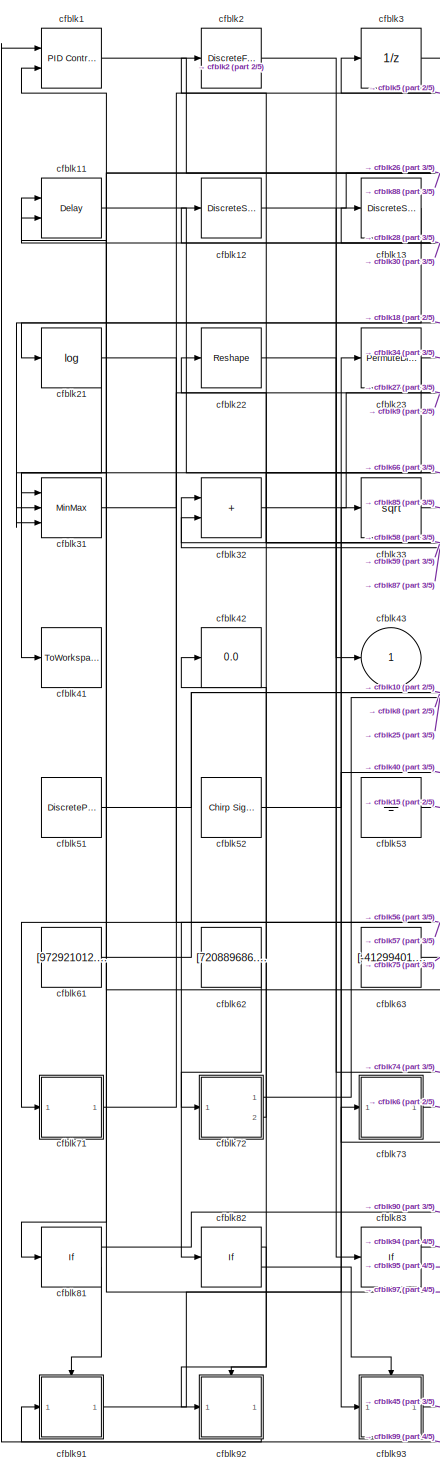
[diagram: root canvas - part 1/5, left side, full height]
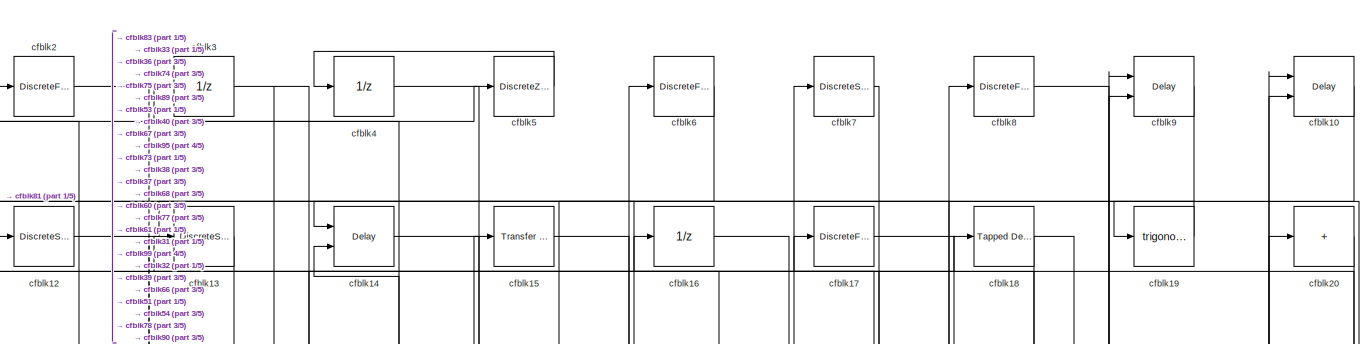
[diagram: root canvas - part 2/5, full width, top band]
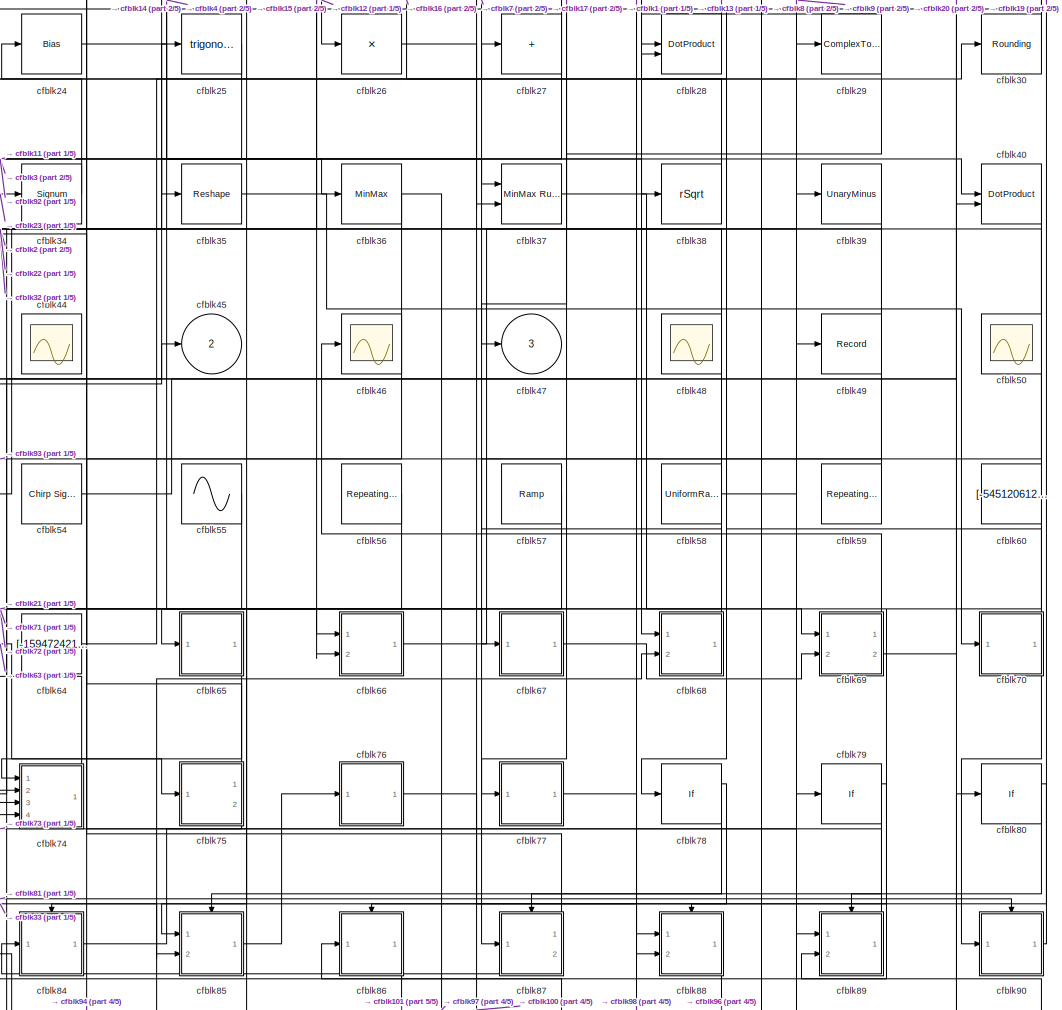
[diagram: root canvas - part 3/5, central region]
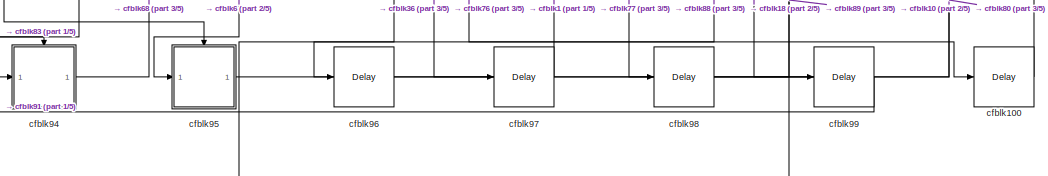
[diagram: root canvas - part 4/5, bottom center region]
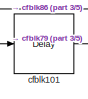
[diagram: root canvas - part 5/5, bottom left region]
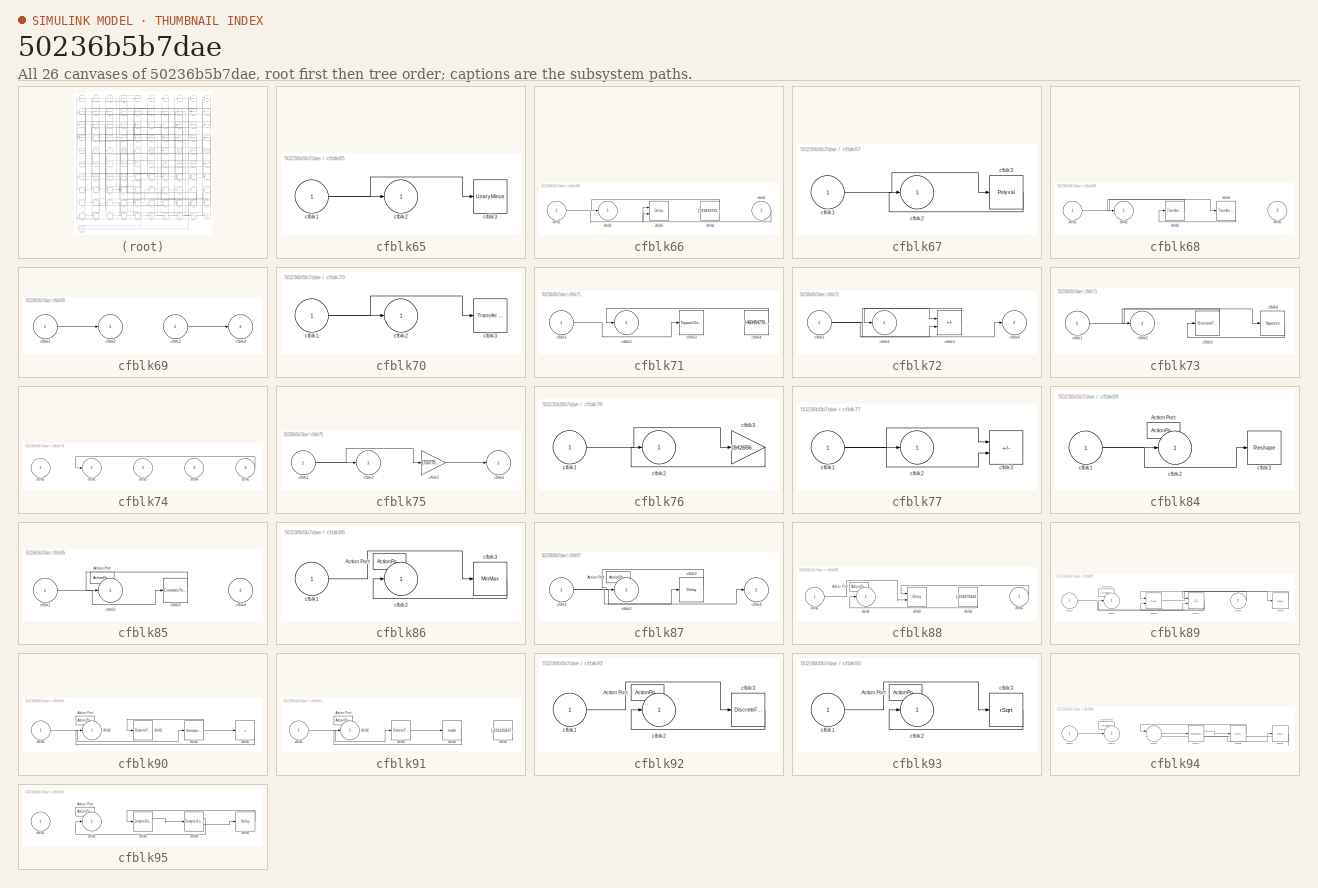
[diagram: thumbnail index - all 26 canvases of the model, root first then tree order]
MODEL slx_50236b5b7dae
KIND model
CONFIG AbsTol = auto
CONFIG EnableMultiTasking = off
CONFIG FixedStep = auto
CONFIG MaxStep = auto
CONFIG MinStep = auto
CONFIG RelTol = 1e-3
CONFIG SampleTimeConstraint = Unconstrained
CONFIG SolverName = VariableStepAuto
CONFIG StartTime = 0.0
CONFIG StopTime = 10.0
BLOCK [Reference] cfblk1  REF=slpidlib/PID Controller (2DOF)
  Ports = [2, 1]
  SourceBlock = slpidlib/PID Controller (2DOF)
  SourceProductBaseCode = SL
  SourceType = PID 2dof
BLOCK [Delay] cfblk10
  InputPortMap = u0,e6
  Ports = [2, 1]
  SampleTime = 1
  ShowEnablePort = on
BLOCK [Delay] cfblk100
  InputPortMap = u0
  Ports = [1, 1]
  SampleTime = 1
BLOCK [Delay] cfblk101
  InputPortMap = u0
  Ports = [1, 1]
  SampleTime = 1
BLOCK [Delay] cfblk11
  DelayLengthSource = Input port
  InputPortMap = u0,p1
  Ports = [2, 1]
  SampleTime = 1
BLOCK [DiscreteStateSpace] cfblk12
BLOCK [DiscreteStateSpace] cfblk13
BLOCK [Delay] cfblk14
  InputPortMap = u0,e6
  Ports = [2, 1]
  SampleTime = 1
  ShowEnablePort = on
BLOCK [Reference] cfblk15  REF=simulink/Discrete/Transfer Fcn
First Order
  Ports = [1, 1]
  SourceBlock = simulink/Discrete/Transfer Fcn\nFirst Order
  SourceProductBaseCode = SL
  SourceType = First Order Transfer Fcn
BLOCK [UnitDelay] cfblk16
  HasFrameUpgradeWarning = on
BLOCK [DiscreteFir] cfblk17
  InputPortMap = u0
  OutputPortMap = o0
  Ports = [1, 1]
  SampleTime = 1
BLOCK [Reference] cfblk18  REF=simulink/Discrete/Tapped Delay
  Ports = [1, 1]
  SourceBlock = simulink/Discrete/Tapped Delay
  SourceProductBaseCode = SL
  SourceType = Tapped Delay Line
BLOCK [Trigonometry] cfblk19
  Ports = [1, 1]
BLOCK [DiscreteFir] cfblk2
  InputPortMap = u0
  OutputPortMap = o0
  Ports = [1, 1]
  SampleTime = 1
BLOCK [Sum] cfblk20
  IconShape = rectangular
  Inputs = +
  Ports = [1, 1]
BLOCK [Math] cfblk21
  Operator = log
  Ports = [1, 1]
BLOCK [Reshape] cfblk22
  Ports = [1, 1]
BLOCK [PermuteDimensions] cfblk23
BLOCK [Bias] cfblk24
  Bias = [-901351750.501073]
  SaturateOnIntegerOverflow = off
BLOCK [Trigonometry] cfblk25
  Ports = [1, 1]
BLOCK [Product] cfblk26
  Inputs = *
  Ports = [1, 1]
BLOCK [Sum] cfblk27
  IconShape = rectangular
  Inputs = +
  Ports = [1, 1]
BLOCK [DotProduct] cfblk28
  OutDataTypeStr = Inherit: Inherit via internal rule
BLOCK [ComplexToRealImag] cfblk29
  Ports = [1, 2]
BLOCK [UnitDelay] cfblk3
  HasFrameUpgradeWarning = on
BLOCK [Rounding] cfblk30
BLOCK [MinMax] cfblk31
  Inputs = 3
  Ports = [3, 1]
BLOCK [Sum] cfblk32
  IconShape = rectangular
  Ports = [2, 1]
BLOCK [Sqrt] cfblk33
BLOCK [Signum] cfblk34
BLOCK [Reshape] cfblk35
  Ports = [1, 1]
BLOCK [MinMax] cfblk36
  Function = max
  Ports = [1, 1]
BLOCK [Reference] cfblk37  REF=simulink/Math
Operations/MinMax
Running
Resettable
  Ports = [2, 1]
  SourceBlock = simulink/Math\nOperations/MinMax\nRunning\nResettable
  SourceProductBaseCode = SL
  SourceType = MinMax Running Resettable
BLOCK [Sqrt] cfblk38
  AlgorithmType = Newton-Raphson
  Operator = rSqrt
BLOCK [UnaryMinus] cfblk39
BLOCK [UnitDelay] cfblk4
  HasFrameUpgradeWarning = on
BLOCK [DotProduct] cfblk40
  OutDataTypeStr = Inherit: Inherit via internal rule
BLOCK [ToWorkspace] cfblk41
  FixptAsFi = on
  MaxDataPoints = inf
  Ports = [1]
  SampleTime = -1
  SaveFormat = Timeseries
  VariableName = iqaqulc
BLOCK [Display] cfblk42
  Decimation = 1
  Ports = [1]
BLOCK [Outport] cfblk43
BLOCK [Scope] cfblk44
  Floating = on
  NumInputPorts = 1
  Ports = []
  ScopeSpecificationString = Simulink.scopes.TimeScopeBlockCfg
BLOCK [Outport] cfblk45
  Port = 2
BLOCK [Scope] cfblk46
  Floating = off
  NumInputPorts = 1
  Ports = [1]
  ScopeSpecificationString = Simulink.scopes.TimeScopeBlockCfg
BLOCK [Outport] cfblk47
  Port = 3
BLOCK [Scope] cfblk48
  Floating = on
  NumInputPorts = 1
  Ports = []
  ScopeSpecificationString = Simulink.scopes.TimeScopeBlockCfg
BLOCK [Record] cfblk49
  FileSettingsInternal = {"entries":[{"content":{"excelSettings":{"content":{},"type":"Streamout.ExcelSettings"}},"type":"Streamout.FileSettingStorage","uuid":"f2e1b8d2-99cf-47f0-99c0-b13258d1778a"}],"packageUris":["http://schema.mathworks.com/mf0/streamout_blocks/R2020a"],"version":"1.0"}
  Ports = [1]
  SignalsInternal = {"entries":[{"content":{"signals":[{"content":{"blockPath":["sampleModel98/cfblk49"],"channel":[],"dimensions":[1],"domain":"sampleModel98/cfblk49","lineColor":"#4dbeee","plots":[1],"port":1,"sid":[""],"signalID":26449,"signalName":"cfblk84"},"type":"RecordBlkView.Signal","uuid":"a8dcc7f6-b363-4ce4-accc-3e93054832d9"}]},"type":"RecordBlkView.InputSignals","uuid":"aaaac346-ddfa-4c10-a6ea-2fd00368ec...<+96ch>
  VisualizationBindings = {"sparklinesplugin":{"info":[{"bindingParametersList":[],"subplotID":1}]}}
BLOCK [DiscreteZeroPole] cfblk5
  Gain = 1
  Poles = [0 0.5]
BLOCK [Scope] cfblk50
  Floating = on
  NumInputPorts = 1
  Ports = []
  ScopeSpecificationString = Simulink.scopes.TimeScopeBlockCfg
BLOCK [DiscretePulseGenerator] cfblk51
  Amplitude = [-833125303.274875]
  Period = [62482245.083306]
  PhaseDelay = [3.000000]
  Ports = [0, 1]
  PulseType = Time based
  PulseWidth = 5
BLOCK [Reference] cfblk52  REF=simulink/Sources/Chirp Signal
  Ports = [0, 1]
  SourceBlock = simulink/Sources/Chirp Signal
  SourceProductBaseCode = SL
  SourceType = chirp
BLOCK [Ground] cfblk53
BLOCK [Reference] cfblk54  REF=simulink/Sources/Chirp Signal
  Ports = [0, 1]
  SourceBlock = simulink/Sources/Chirp Signal
  SourceProductBaseCode = SL
  SourceType = chirp
BLOCK [Sin] cfblk55
  Amplitude = [-344619677.755525]
  Bias = [504210884.884345]
  Ports = [0, 1]
  SampleTime = 0
BLOCK [Reference] cfblk56  REF=simulink/Sources/Repeating
Sequence
Interpolated
  Ports = [0, 1]
  SourceBlock = simulink/Sources/Repeating\nSequence\nInterpolated
  SourceProductBaseCode = SL
  SourceType = Repeating Sequence Interpolated
BLOCK [Reference] cfblk57  REF=simulink/Sources/Ramp
  Ports = [0, 1]
  SourceBlock = simulink/Sources/Ramp
  SourceProductBaseCode = SL
  SourceType = Ramp
BLOCK [UniformRandomNumber] cfblk58
  Maximum = [1513930273.771641]
  Minimum = [-3049811920.776981]
  SampleTime = 0.1
  Seed = [63448783.000000]
BLOCK [Reference] cfblk59  REF=simulink/Sources/Repeating
Sequence
  Ports = [0, 1]
  SourceBlock = simulink/Sources/Repeating\nSequence
  SourceProductBaseCode = SL
  SourceType = Repeating table
BLOCK [DiscreteFilter] cfblk6
  InputPortMap = u0
  Ports = [1, 1]
  SampleTime = 1
BLOCK [Constant] cfblk60
  SampleTime = 1
  Value = [-545120612.766279]
BLOCK [Constant] cfblk61
  SampleTime = 1
  Value = [972921012.275413]
BLOCK [Constant] cfblk62
  SampleTime = 1
  Value = [720889686.966521]
BLOCK [Constant] cfblk63
  SampleTime = 1
  Value = [-41299401.357326]
BLOCK [Constant] cfblk64
  SampleTime = 1
  Value = [-159472421.639859]
BLOCK [SubSystem] cfblk65
  Ports = [1, 1]
  RequestExecContextInheritance = off
BLOCK [Inport] cfblk65/cfblk1
BLOCK [Outport] cfblk65/cfblk2
BLOCK [UnaryMinus] cfblk65/cfblk3
BLOCK [SubSystem] cfblk66
  Ports = [2, 1]
  RequestExecContextInheritance = off
BLOCK [Inport] cfblk66/cfblk1
BLOCK [Outport] cfblk66/cfblk2
BLOCK [Delay] cfblk66/cfblk3
  DelayLengthSource = Input port
  InputPortMap = u0,p1
  Ports = [2, 1]
  SampleTime = 1
BLOCK [Constant] cfblk66/cfblk4
  SampleTime = 1
  Value = [743833791.353343]
BLOCK [Inport] cfblk66/cfblk5
  Port = 2
BLOCK [SubSystem] cfblk67
  Ports = [1, 1]
  RequestExecContextInheritance = off
BLOCK [Inport] cfblk67/cfblk1
BLOCK [Outport] cfblk67/cfblk2
BLOCK [Polyval] cfblk67/cfblk3
  Coefs = [ +2.081618890e-019, -1.441693666e-014, +4.719686976e-010, -8.536869453e-006, +1.621573104e-001, -8.087801117e+001 ]
BLOCK [SubSystem] cfblk68
  Ports = [2, 1]
  RequestExecContextInheritance = off
BLOCK [Inport] cfblk68/cfblk1
BLOCK [Outport] cfblk68/cfblk2
BLOCK [Reference] cfblk68/cfblk3  REF=simulink/Discrete/Transfer Fcn
Lead or Lag
  Ports = [1, 1]
  SourceBlock = simulink/Discrete/Transfer Fcn\nLead or Lag
  SourceProductBaseCode = SL
  SourceType = Lead or Lag Compensator
BLOCK [Reference] cfblk68/cfblk4  REF=simulink/Discrete/Transfer Fcn
First Order
  Ports = [1, 1]
  SourceBlock = simulink/Discrete/Transfer Fcn\nFirst Order
  SourceProductBaseCode = SL
  SourceType = First Order Transfer Fcn
BLOCK [Inport] cfblk68/cfblk5
  Port = 2
BLOCK [SubSystem] cfblk69
  Ports = [2, 2]
  RequestExecContextInheritance = off
BLOCK [Inport] cfblk69/cfblk1
BLOCK [Outport] cfblk69/cfblk2
BLOCK [Inport] cfblk69/cfblk3
  Port = 2
BLOCK [Outport] cfblk69/cfblk4
  Port = 2
BLOCK [DiscreteStateSpace] cfblk7
BLOCK [SubSystem] cfblk70
  Ports = [1, 1]
  RequestExecContextInheritance = off
BLOCK [Inport] cfblk70/cfblk1
BLOCK [Outport] cfblk70/cfblk2
BLOCK [Reference] cfblk70/cfblk3  REF=simulink/Discrete/Transfer Fcn
Real Zero
  Ports = [1, 1]
  SourceBlock = simulink/Discrete/Transfer Fcn\nReal Zero
  SourceProductBaseCode = SL
  SourceType = Transfer Fcn Real Zero
BLOCK [SubSystem] cfblk71
  Ports = [1, 1]
  RequestExecContextInheritance = off
BLOCK [Inport] cfblk71/cfblk1
BLOCK [Outport] cfblk71/cfblk2
BLOCK [Reference] cfblk71/cfblk3  REF=simulink/Discrete/Tapped Delay
  Ports = [1, 1]
  SourceBlock = simulink/Discrete/Tapped Delay
  SourceProductBaseCode = SL
  SourceType = Tapped Delay Line
BLOCK [Constant] cfblk71/cfblk4
  SampleTime = 1
  Value = [-493454779.766346]
BLOCK [SubSystem] cfblk72
  Ports = [1, 2]
  RequestExecContextInheritance = off
BLOCK [Inport] cfblk72/cfblk1
BLOCK [Outport] cfblk72/cfblk2
BLOCK [Sum] cfblk72/cfblk3
  IconShape = rectangular
  Inputs = -+
  Ports = [2, 1]
BLOCK [Outport] cfblk72/cfblk4
  Port = 2
BLOCK [SubSystem] cfblk73
  Ports = [1, 1]
  RequestExecContextInheritance = off
BLOCK [Inport] cfblk73/cfblk1
BLOCK [Outport] cfblk73/cfblk2
BLOCK [DiscreteFir] cfblk73/cfblk3
  InputPortMap = u0
  OutputPortMap = o0
  Ports = [1, 1]
  SampleTime = 1
BLOCK [Squeeze] cfblk73/cfblk4
BLOCK [SubSystem] cfblk74
  Ports = [4, 1]
  RequestExecContextInheritance = off
BLOCK [Inport] cfblk74/cfblk1
BLOCK [Outport] cfblk74/cfblk2
BLOCK [Inport] cfblk74/cfblk3
  Port = 2
BLOCK [Inport] cfblk74/cfblk4
  Port = 3
BLOCK [Inport] cfblk74/cfblk5
  Port = 4
BLOCK [SubSystem] cfblk75
  Ports = [1, 2]
  RequestExecContextInheritance = off
BLOCK [Inport] cfblk75/cfblk1
BLOCK [Outport] cfblk75/cfblk2
BLOCK [Gain] cfblk75/cfblk3
  Gain = [733775026.477658]
BLOCK [Outport] cfblk75/cfblk4
  Port = 2
BLOCK [SubSystem] cfblk76
  Ports = [1, 1]
  RequestExecContextInheritance = off
BLOCK [Inport] cfblk76/cfblk1
BLOCK [Outport] cfblk76/cfblk2
BLOCK [Gain] cfblk76/cfblk3
  Gain = [842656306.747362]
BLOCK [SubSystem] cfblk77
  Ports = [1, 1]
  RequestExecContextInheritance = off
BLOCK [Inport] cfblk77/cfblk1
BLOCK [Outport] cfblk77/cfblk2
BLOCK [Sum] cfblk77/cfblk3
  IconShape = rectangular
  Inputs = +-
  Ports = [2, 1]
BLOCK [If] cfblk78
  IfExpression = u1 >= 0
  Ports = [1, 2]
  SampleTime = 1
BLOCK [If] cfblk79
  IfExpression = u1 >= 0
  Ports = [1, 2]
  SampleTime = 1
BLOCK [DiscreteFilter] cfblk8
  InputPortMap = u0
  Ports = [1, 1]
  SampleTime = 1
BLOCK [If] cfblk80
  IfExpression = u1 >= 0
  Ports = [1, 2]
  SampleTime = 1
BLOCK [If] cfblk81
  IfExpression = u1 >= 0
  Ports = [1, 2]
  SampleTime = 1
BLOCK [If] cfblk82
  IfExpression = u1 >= 0
  Ports = [1, 2]
  SampleTime = 1
BLOCK [If] cfblk83
  IfExpression = u1 >= 0
  Ports = [1, 2]
  SampleTime = 1
BLOCK [SubSystem] cfblk84
  Ports = [1, 1, 0, 0, 0, 0, 0, 1]
  RequestExecContextInheritance = off
  TreatAsAtomicUnit = on
BLOCK [ActionPort] cfblk84/Action Port
  ActionPortLabel = if(u1 >= 0)
BLOCK [Inport] cfblk84/cfblk1
BLOCK [Outport] cfblk84/cfblk2
BLOCK [Reshape] cfblk84/cfblk3
  Ports = [1, 1]
BLOCK [SubSystem] cfblk85
  Ports = [2, 1, 0, 0, 0, 0, 0, 1]
  RequestExecContextInheritance = off
  TreatAsAtomicUnit = on
BLOCK [ActionPort] cfblk85/Action Port
  ActionPortLabel = else
BLOCK [Inport] cfblk85/cfblk1
BLOCK [Outport] cfblk85/cfblk2
BLOCK [ComplexToRealImag] cfblk85/cfblk3
  Ports = [1, 2]
BLOCK [Inport] cfblk85/cfblk4
  Port = 2
BLOCK [SubSystem] cfblk86
  Ports = [1, 1, 0, 0, 0, 0, 0, 1]
  RequestExecContextInheritance = off
  TreatAsAtomicUnit = on
BLOCK [ActionPort] cfblk86/Action Port
  ActionPortLabel = if(u1 >= 0)
BLOCK [Inport] cfblk86/cfblk1
BLOCK [Outport] cfblk86/cfblk2
BLOCK [MinMax] cfblk86/cfblk3
  Ports = [1, 1]
BLOCK [SubSystem] cfblk87
  Ports = [1, 2, 0, 0, 0, 0, 0, 1]
  RequestExecContextInheritance = off
  TreatAsAtomicUnit = on
BLOCK [ActionPort] cfblk87/Action Port
  ActionPortLabel = else
BLOCK [Inport] cfblk87/cfblk1
BLOCK [Outport] cfblk87/cfblk2
BLOCK [Delay] cfblk87/cfblk3
  InputPortMap = u0
  Ports = [1, 1]
BLOCK [Outport] cfblk87/cfblk4
  Port = 2
BLOCK [SubSystem] cfblk88
  Ports = [2, 1, 0, 0, 0, 0, 0, 1]
  RequestExecContextInheritance = off
  TreatAsAtomicUnit = on
BLOCK [ActionPort] cfblk88/Action Port
  ActionPortLabel = if(u1 >= 0)
BLOCK [Inport] cfblk88/cfblk1
BLOCK [Outport] cfblk88/cfblk2
BLOCK [Delay] cfblk88/cfblk3
  DelayLengthSource = Input port
  InputPortMap = u0,p1
  Ports = [2, 1]
BLOCK [Constant] cfblk88/cfblk4
  SampleTime = 1
  Value = [-234475642.590954]
BLOCK [Inport] cfblk88/cfblk5
  Port = 2
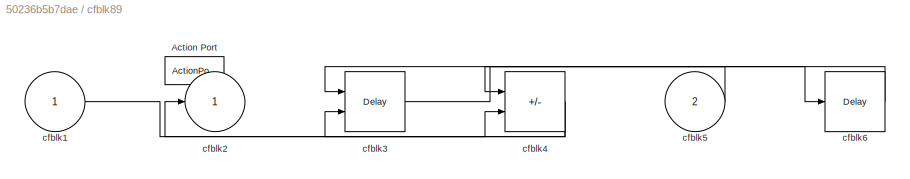
BLOCK [SubSystem] cfblk89
  Ports = [2, 1, 0, 0, 0, 0, 0, 1]
  RequestExecContextInheritance = off
  TreatAsAtomicUnit = on
BLOCK [ActionPort] cfblk89/Action Port
  ActionPortLabel = else
BLOCK [Inport] cfblk89/cfblk1
BLOCK [Outport] cfblk89/cfblk2
BLOCK [Delay] cfblk89/cfblk3
  InputPortMap = u0,e6
  Ports = [2, 1]
  ShowEnablePort = on
BLOCK [Sum] cfblk89/cfblk4
  IconShape = rectangular
  Inputs = --
  Ports = [2, 1]
BLOCK [Inport] cfblk89/cfblk5
  Port = 2
BLOCK [Delay] cfblk89/cfblk6
  InputPortMap = u0
  Ports = [1, 1]
BLOCK [Delay] cfblk9
  InputPortMap = u0,e6
  Ports = [2, 1]
  SampleTime = 1
  ShowEnablePort = on
BLOCK [SubSystem] cfblk90
  Ports = [1, 1, 0, 0, 0, 0, 0, 1]
  RequestExecContextInheritance = off
  TreatAsAtomicUnit = on
BLOCK [ActionPort] cfblk90/Action Port
  ActionPortLabel = if(u1 >= 0)
BLOCK [Inport] cfblk90/cfblk1
BLOCK [Outport] cfblk90/cfblk2
BLOCK [DiscreteFir] cfblk90/cfblk3
  InputPortMap = u0
  OutputPortMap = o0
  Ports = [1, 1]
BLOCK [Math] cfblk90/cfblk4
  Operator = transpose
  Ports = [1, 1]
BLOCK [Sum] cfblk90/cfblk5
  IconShape = rectangular
  Inputs = +
  Ports = [1, 1]
BLOCK [SubSystem] cfblk91
  Ports = [1, 1, 0, 0, 0, 0, 0, 1]
  RequestExecContextInheritance = off
  TreatAsAtomicUnit = on
BLOCK [ActionPort] cfblk91/Action Port
  ActionPortLabel = else
BLOCK [Inport] cfblk91/cfblk1
BLOCK [Outport] cfblk91/cfblk2
BLOCK [DiscreteFilter] cfblk91/cfblk3
  InputPortMap = u0
  Ports = [1, 1]
BLOCK [Math] cfblk91/cfblk4
  Ports = [1, 1]
BLOCK [Constant] cfblk91/cfblk5
  SampleTime = 1
  Value = [-223125837.361572]
BLOCK [SubSystem] cfblk92
  Ports = [1, 1, 0, 0, 0, 0, 0, 1]
  RequestExecContextInheritance = off
  TreatAsAtomicUnit = on
BLOCK [ActionPort] cfblk92/Action Port
  ActionPortLabel = if(u1 >= 0)
BLOCK [Inport] cfblk92/cfblk1
BLOCK [Outport] cfblk92/cfblk2
BLOCK [DiscreteFir] cfblk92/cfblk3
  InputPortMap = u0
  OutputPortMap = o0
  Ports = [1, 1]
BLOCK [SubSystem] cfblk93
  Ports = [1, 1, 0, 0, 0, 0, 0, 1]
  RequestExecContextInheritance = off
  TreatAsAtomicUnit = on
BLOCK [ActionPort] cfblk93/Action Port
  ActionPortLabel = else
BLOCK [Inport] cfblk93/cfblk1
BLOCK [Outport] cfblk93/cfblk2
BLOCK [Sqrt] cfblk93/cfblk3
  AlgorithmType = Newton-Raphson
  Operator = rSqrt
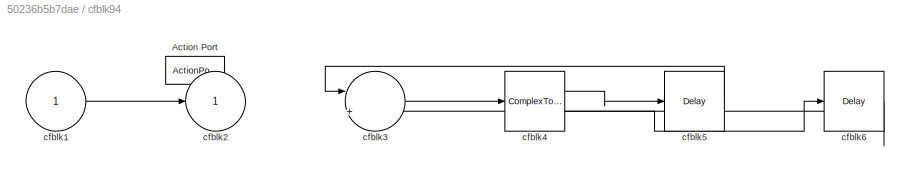
BLOCK [SubSystem] cfblk94
  Ports = [1, 1, 0, 0, 0, 0, 0, 1]
  RequestExecContextInheritance = off
  TreatAsAtomicUnit = on
BLOCK [ActionPort] cfblk94/Action Port
  ActionPortLabel = if(u1 >= 0)
BLOCK [Inport] cfblk94/cfblk1
BLOCK [Outport] cfblk94/cfblk2
BLOCK [Sum] cfblk94/cfblk3
  Inputs = |++
  Ports = [2, 1]
BLOCK [ComplexToMagnitudeAngle] cfblk94/cfblk4
  Ports = [1, 2]
BLOCK [Delay] cfblk94/cfblk5
  InputPortMap = u0
  Ports = [1, 1]
BLOCK [Delay] cfblk94/cfblk6
  InputPortMap = u0
  Ports = [1, 1]
BLOCK [SubSystem] cfblk95
  Ports = [1, 1, 0, 0, 0, 0, 0, 1]
  RequestExecContextInheritance = off
  TreatAsAtomicUnit = on
BLOCK [ActionPort] cfblk95/Action Port
  ActionPortLabel = else
BLOCK [Inport] cfblk95/cfblk1
BLOCK [Outport] cfblk95/cfblk2
BLOCK [ComplexToMagnitudeAngle] cfblk95/cfblk3
  Ports = [1, 2]
BLOCK [ComplexToMagnitudeAngle] cfblk95/cfblk4
  Ports = [1, 2]
BLOCK [Delay] cfblk95/cfblk5
  InputPortMap = u0
  Ports = [1, 1]
BLOCK [Delay] cfblk96
  InputPortMap = u0
  Ports = [1, 1]
  SampleTime = 1
BLOCK [Delay] cfblk97
  InputPortMap = u0
  Ports = [1, 1]
  SampleTime = 1
BLOCK [Delay] cfblk98
  InputPortMap = u0
  Ports = [1, 1]
  SampleTime = 1
BLOCK [Delay] cfblk99
  InputPortMap = u0
  Ports = [1, 1]
  SampleTime = 1
LINE cfblk100:1 -> cfblk89:2
LINE cfblk101:1 -> cfblk79:1
LINE cfblk10:1 -> cfblk31:1
LINE cfblk11:1 -> cfblk66:1
NET cfblk12:1 -> cfblk26:1, cfblk74:4
LINE cfblk13:1 -> cfblk21:1
LINE cfblk14:1 -> cfblk40:1
LINE cfblk15:1 -> cfblk38:1
LINE cfblk16:1 -> cfblk37:2
LINE cfblk17:1 -> cfblk68:1
NET cfblk18:1 -> cfblk31:3, cfblk99:1
LINE cfblk19:1 -> cfblk14:1
LINE cfblk1:1 -> cfblk88:1
LINE cfblk20:1 -> cfblk78:1
NET cfblk21:1 -> cfblk41:1, cfblk66:2
LINE cfblk22:1 -> cfblk43:1
NET cfblk23:1 -> cfblk31:2, cfblk34:1
LINE cfblk24:1 -> cfblk37:1
LINE cfblk25:1 -> cfblk35:1
LINE cfblk26:1 -> cfblk88:2
NET cfblk27:1 -> cfblk11:2, cfblk92:1
LINE cfblk28:1 -> cfblk13:1
LINE cfblk29:1 -> cfblk28:1
LINE cfblk29:2 -> cfblk47:1
LINE cfblk2:1 -> cfblk83:1
LINE cfblk30:1 -> cfblk12:1
LINE cfblk31:1 -> cfblk5:1
LINE cfblk32:1 -> cfblk9:2
NET cfblk33:1 -> cfblk18:1, cfblk85:2
LINE cfblk34:1 -> cfblk24:1
LINE cfblk35:1 -> cfblk70:1
NET cfblk36:1 -> cfblk94:1, cfblk97:1
LINE cfblk37:1 -> cfblk69:1
LINE cfblk38:1 -> cfblk16:1
LINE cfblk39:1 -> cfblk87:1
NET cfblk3:1 -> cfblk36:1, cfblk74:2
LINE cfblk40:1 -> cfblk93:1
LINE cfblk4:1 -> cfblk67:1
LINE cfblk51:1 -> cfblk10:1
LINE cfblk52:1 -> cfblk23:1
LINE cfblk53:1 -> cfblk15:1
LINE cfblk54:1 -> cfblk20:1
LINE cfblk55:1 -> cfblk65:1
LINE cfblk56:1 -> cfblk72:1
LINE cfblk57:1 -> cfblk71:1
NET cfblk58:1 -> cfblk22:1, cfblk29:1, cfblk74:3
LINE cfblk59:1 -> cfblk32:2
LINE cfblk5:1 -> cfblk4:1
NET cfblk60:1 -> cfblk17:1, cfblk2:1, cfblk85:1, cfblk86:1
LINE cfblk61:1 -> cfblk8:1
LINE cfblk62:1 -> cfblk82:1
LINE cfblk63:1 -> cfblk75:1
LINE cfblk64:1 -> cfblk30:1
NET cfblk65/cfblk1:1 -> cfblk65/cfblk2:1, cfblk65/cfblk3:1
LINE cfblk65:1 -> cfblk74:1
LINE cfblk66/cfblk1:1 -> cfblk66/cfblk3:2
LINE cfblk66/cfblk4:1 -> cfblk66/cfblk2:1
LINE cfblk66/cfblk5:1 -> cfblk66/cfblk3:1
LINE cfblk66:1 -> cfblk9:1
LINE cfblk67/cfblk1:1 -> cfblk67/cfblk3:1
LINE cfblk67/cfblk3:1 -> cfblk67/cfblk2:1
LINE cfblk67:1 -> cfblk69:2
LINE cfblk68/cfblk1:1 -> cfblk68/cfblk4:1
LINE cfblk68/cfblk3:1 -> cfblk68/cfblk2:1
LINE cfblk68/cfblk4:1 -> cfblk68/cfblk3:1
LINE cfblk68:1 -> cfblk7:1
LINE cfblk69/cfblk1:1 -> cfblk69/cfblk2:1
LINE cfblk69/cfblk3:1 -> cfblk69/cfblk4:1
LINE cfblk69:1 -> cfblk46:1
LINE cfblk69:2 -> cfblk40:2
LINE cfblk6:1 -> cfblk95:1
NET cfblk70/cfblk1:1 -> cfblk70/cfblk2:1, cfblk70/cfblk3:1
NET cfblk70:1 -> cfblk28:2, cfblk90:1
LINE cfblk71/cfblk1:1 -> cfblk71/cfblk3:1
LINE cfblk71/cfblk4:1 -> cfblk71/cfblk2:1
LINE cfblk71:1 -> cfblk27:1
NET cfblk72/cfblk1:1 -> cfblk72/cfblk3:1, cfblk72/cfblk3:2, cfblk72/cfblk4:1
LINE cfblk72/cfblk3:1 -> cfblk72/cfblk2:1
LINE cfblk72:1 -> cfblk25:1
LINE cfblk72:2 -> cfblk42:1
LINE cfblk73/cfblk1:1 -> cfblk73/cfblk4:1
LINE cfblk73/cfblk3:1 -> cfblk73/cfblk2:1
LINE cfblk73/cfblk4:1 -> cfblk73/cfblk3:1
LINE cfblk73:1 -> cfblk6:1
LINE cfblk74/cfblk5:1 -> cfblk74/cfblk2:1
LINE cfblk74:1 -> cfblk11:1
NET cfblk75/cfblk1:1 -> cfblk75/cfblk2:1, cfblk75/cfblk3:1
LINE cfblk75/cfblk3:1 -> cfblk75/cfblk4:1
LINE cfblk75:1 -> cfblk14:2
LINE cfblk75:2 -> cfblk73:1
LINE cfblk76/cfblk1:1 -> cfblk76/cfblk3:1
LINE cfblk76/cfblk3:1 -> cfblk76/cfblk2:1
LINE cfblk76:1 -> cfblk100:1
NET cfblk77/cfblk1:1 -> cfblk77/cfblk2:1, cfblk77/cfblk3:1, cfblk77/cfblk3:2
LINE cfblk77:1 -> cfblk98:1
LINE cfblk78:1 -> cfblk84:ifaction
LINE cfblk78:2 -> cfblk85:ifaction
LINE cfblk79:1 -> cfblk86:ifaction
LINE cfblk79:2 -> cfblk87:ifaction
LINE cfblk7:1 -> cfblk77:1
LINE cfblk80:1 -> cfblk88:ifaction
LINE cfblk80:2 -> cfblk89:ifaction
LINE cfblk81:1 -> cfblk90:ifaction
LINE cfblk81:2 -> cfblk91:ifaction
LINE cfblk82:1 -> cfblk92:ifaction
LINE cfblk82:2 -> cfblk93:ifaction
LINE cfblk83:1 -> cfblk94:ifaction
LINE cfblk83:2 -> cfblk95:ifaction
NET cfblk84/cfblk1:1 -> cfblk84/cfblk2:1, cfblk84/cfblk3:1
LINE cfblk84:1 -> cfblk49:1
LINE cfblk85/cfblk1:1 -> cfblk85/cfblk3:1
LINE cfblk85/cfblk3:1 -> cfblk85/cfblk2:1
LINE cfblk85:1 -> cfblk76:1
LINE cfblk86/cfblk1:1 -> cfblk86/cfblk3:1
LINE cfblk86/cfblk3:1 -> cfblk86/cfblk2:1
LINE cfblk86:1 -> cfblk101:1
NET cfblk87/cfblk1:1 -> cfblk87/cfblk3:1, cfblk87/cfblk4:1
LINE cfblk87/cfblk3:1 -> cfblk87/cfblk2:1
LINE cfblk87:1 -> cfblk32:1
LINE cfblk87:2 -> cfblk84:1
LINE cfblk88/cfblk1:1 -> cfblk88/cfblk3:2
LINE cfblk88/cfblk4:1 -> cfblk88/cfblk2:1
LINE cfblk88/cfblk5:1 -> cfblk88/cfblk3:1
LINE cfblk88:1 -> cfblk96:1
LINE cfblk89/cfblk1:1 -> cfblk89/cfblk4:2
LINE cfblk89/cfblk3:1 -> cfblk89/cfblk6:1
NET cfblk89/cfblk4:1 -> cfblk89/cfblk2:1, cfblk89/cfblk3:2
LINE cfblk89/cfblk5:1 -> cfblk89/cfblk3:1
LINE cfblk89/cfblk6:1 -> cfblk89/cfblk4:1
LINE cfblk89:1 -> cfblk3:1
LINE cfblk8:1 -> cfblk39:1
LINE cfblk90/cfblk1:1 -> cfblk90/cfblk4:1
NET cfblk90/cfblk4:1 -> cfblk90/cfblk3:1, cfblk90/cfblk5:1
LINE cfblk90/cfblk5:1 -> cfblk90/cfblk2:1
LINE cfblk90:1 -> cfblk19:1
LINE cfblk91/cfblk1:1 -> cfblk91/cfblk3:1
LINE cfblk91/cfblk3:1 -> cfblk91/cfblk4:1
LINE cfblk91/cfblk4:1 -> cfblk91/cfblk2:1
LINE cfblk91:1 -> cfblk33:1
LINE cfblk92/cfblk1:1 -> cfblk92/cfblk3:1
LINE cfblk92/cfblk3:1 -> cfblk92/cfblk2:1
LINE cfblk92:1 -> cfblk1:1
LINE cfblk93/cfblk1:1 -> cfblk93/cfblk3:1
LINE cfblk93/cfblk3:1 -> cfblk93/cfblk2:1
LINE cfblk93:1 -> cfblk45:1
LINE cfblk94/cfblk1:1 -> cfblk94/cfblk2:1
LINE cfblk94/cfblk3:1 -> cfblk94/cfblk4:1
LINE cfblk94/cfblk4:1 -> cfblk94/cfblk5:1
LINE cfblk94/cfblk4:2 -> cfblk94/cfblk6:1
LINE cfblk94/cfblk5:1 -> cfblk94/cfblk3:1
LINE cfblk94/cfblk6:1 -> cfblk94/cfblk3:2
LINE cfblk94:1 -> cfblk68:2
LINE cfblk95/cfblk3:1 -> cfblk95/cfblk4:1
LINE cfblk95/cfblk4:1 -> cfblk95/cfblk2:1
LINE cfblk95/cfblk4:2 -> cfblk95/cfblk5:1
LINE cfblk95/cfblk5:1 -> cfblk95/cfblk3:1
LINE cfblk95:1 -> cfblk10:2
LINE cfblk96:1 -> cfblk80:1
LINE cfblk97:1 -> cfblk1:2
LINE cfblk98:1 -> cfblk89:1
LINE cfblk99:1 -> cfblk91:1
LINE cfblk9:1 -> cfblk81:1
note: NET lines group one-source signal fan-out (src -> all destinations, sorted); 1:1 wires keep LINE
